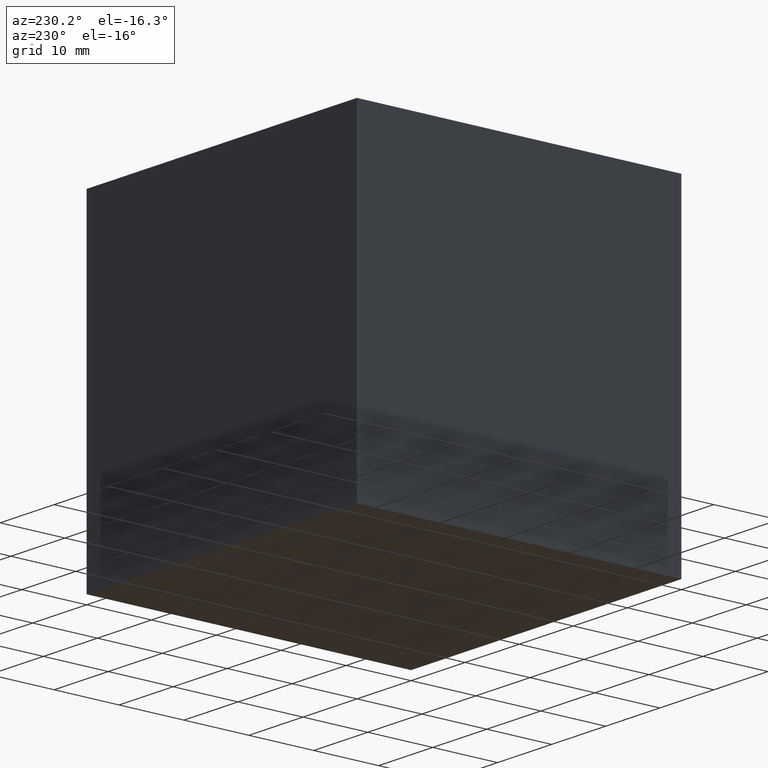
[diagram: clean part render]
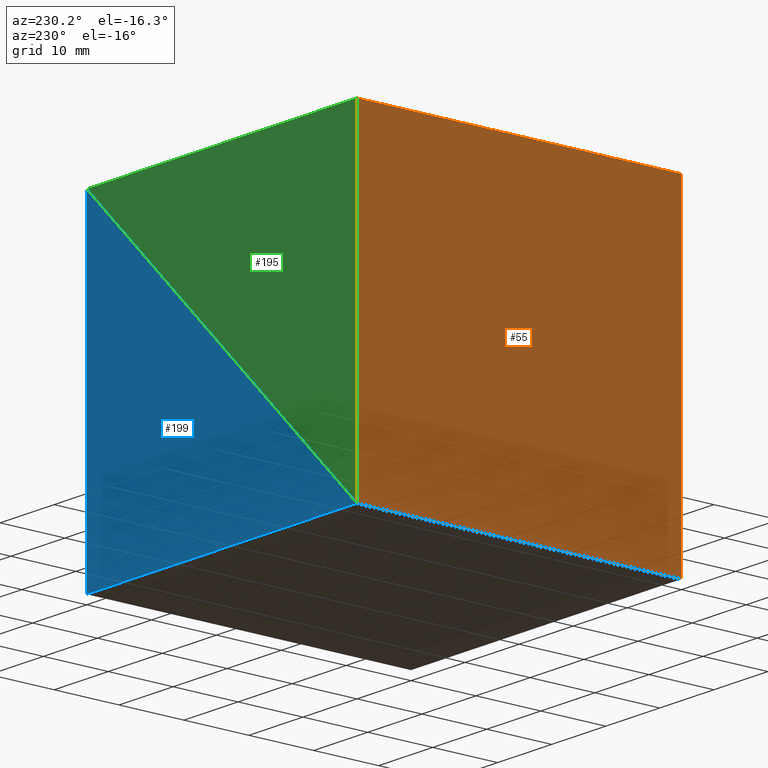
[diagram: same view with three faces highlighted in distinct colors, each labeled with its STEP entity id]
A machine part, auxiliary view with three faces highlighted in distinct colors.
Their STEP definitions:

[orange] entity #55 — the highlighted planar face has unit normal (-1, 0, 0).
#5 = ORIENTED_EDGE ( 'NONE', *, *, #108, .T. ) ;
#9 = DIRECTION ( 'NONE',  ( -0.0000000000000000000, -0.0000000000000000000, -1.000000000000000000 ) ) ;
#24 = LINE ( 'NONE', #30, #215 ) ;
#29 = LINE ( 'NONE', #101, #67 ) ;
#30 = CARTESIAN_POINT ( 'NONE',  ( -50.00000000000000000, 50.00000000000000000, -49.99999999999999300 ) ) ;
#34 = CARTESIAN_POINT ( 'NONE',  ( -50.00000000000000000, 0.0000000000000000000, 0.0000000000000000000 ) ) ;
#35 = LINE ( 'NONE', #255, #126 ) ;
#42 = ORIENTED_EDGE ( 'NONE', *, *, #218, .F. ) ;
#48 = DIRECTION ( 'NONE',  ( -0.0000000000000000000, -0.0000000000000000000, -1.000000000000000000 ) ) ;
#52 = AXIS2_PLACEMENT_3D ( 'NONE', #124, #73, #219 ) ;
#55 = ADVANCED_FACE ( 'NONE', ( #189 ), #301, .T. ) ;
#66 = VERTEX_POINT ( 'NONE', #34 ) ;
#67 = VECTOR ( 'NONE', #68, 1000.000000000000000 ) ;
#68 = DIRECTION ( 'NONE',  ( 0.0000000000000000000, -1.000000000000000000, 0.0000000000000000000 ) ) ;
#73 = DIRECTION ( 'NONE',  ( -1.000000000000000000, 0.0000000000000000000, 0.0000000000000000000 ) ) ;
#98 = EDGE_CURVE ( 'NONE', #221, #175, #29, .T. ) ;
#101 = CARTESIAN_POINT ( 'NONE',  ( -50.00000000000000000, 50.00000000000000000, -49.99999999999999300 ) ) ;
#102 = LINE ( 'NONE', #106, #295 ) ;
#106 = CARTESIAN_POINT ( 'NONE',  ( -50.00000000000000000, 50.00000000000000000, 0.0000000000000000000 ) ) ;
#108 = EDGE_CURVE ( 'NONE', #243, #221, #24, .T. ) ;
#124 = CARTESIAN_POINT ( 'NONE',  ( -50.00000000000000000, 50.00000000000000000, -49.99999999999999300 ) ) ;
#126 = VECTOR ( 'NONE', #48, 1000.000000000000000 ) ;
#133 = EDGE_CURVE ( 'NONE', #243, #66, #102, .T. ) ;
#141 = CARTESIAN_POINT ( 'NONE',  ( -50.00000000000000000, 50.00000000000000000, -49.99999999999999300 ) ) ;
#175 = VERTEX_POINT ( 'NONE', #182 ) ;
#182 = CARTESIAN_POINT ( 'NONE',  ( -50.00000000000000000, -0.0000000000000000000, -49.99999999999999300 ) ) ;
#189 = FACE_OUTER_BOUND ( 'NONE', #190, .T. ) ;
#190 = EDGE_LOOP ( 'NONE', ( #42, #283, #5, #245 ) ) ;
#215 = VECTOR ( 'NONE', #9, 1000.000000000000000 ) ;
#218 = EDGE_CURVE ( 'NONE', #66, #175, #35, .T. ) ;
#219 = DIRECTION ( 'NONE',  ( 0.0000000000000000000, 0.0000000000000000000, 1.000000000000000000 ) ) ;
#221 = VERTEX_POINT ( 'NONE', #141 ) ;
#234 = DIRECTION ( 'NONE',  ( 0.0000000000000000000, -1.000000000000000000, 0.0000000000000000000 ) ) ;
#243 = VERTEX_POINT ( 'NONE', #286 ) ;
#245 = ORIENTED_EDGE ( 'NONE', *, *, #98, .T. ) ;
#255 = CARTESIAN_POINT ( 'NONE',  ( -50.00000000000000000, -0.0000000000000000000, -49.99999999999999300 ) ) ;
#283 = ORIENTED_EDGE ( 'NONE', *, *, #133, .F. ) ;
#286 = CARTESIAN_POINT ( 'NONE',  ( -50.00000000000000000, 50.00000000000000000, 0.0000000000000000000 ) ) ;
#295 = VECTOR ( 'NONE', #234, 1000.000000000000000 ) ;
#301 = PLANE ( 'NONE',  #52 ) ;

[blue] entity #199 — the highlighted planar face has unit normal (-0, 1, 0).
#13 = CARTESIAN_POINT ( 'NONE',  ( 0.0000000000000000000, 50.00000000000000000, -50.00000000000000000 ) ) ;
#32 = PLANE ( 'NONE',  #107 ) ;
#33 = EDGE_CURVE ( 'NONE', #232, #256, #129, .T. ) ;
#41 = ORIENTED_EDGE ( 'NONE', *, *, #290, .T. ) ;
#49 = DIRECTION ( 'NONE',  ( -0.0000000000000000000, 1.000000000000000000, 0.0000000000000000000 ) ) ;
#51 = CARTESIAN_POINT ( 'NONE',  ( 0.0000000000000000000, 50.00000000000000000, -50.00000000000000000 ) ) ;
#70 = DIRECTION ( 'NONE',  ( 0.0000000000000000000, -0.0000000000000000000, 1.000000000000000000 ) ) ;
#77 = DIRECTION ( 'NONE',  ( 0.7071067811865475700, 0.0000000000000000000, 0.7071067811865474600 ) ) ;
#87 = ORIENTED_EDGE ( 'NONE', *, *, #94, .T. ) ;
#91 = DIRECTION ( 'NONE',  ( 0.0000000000000000000, 0.0000000000000000000, -1.000000000000000000 ) ) ;
#94 = EDGE_CURVE ( 'NONE', #256, #252, #285, .T. ) ;
#100 = CARTESIAN_POINT ( 'NONE',  ( 0.0000000000000000000, 50.00000000000000000, 0.0000000000000000000 ) ) ;
#107 = AXIS2_PLACEMENT_3D ( 'NONE', #287, #49, #70 ) ;
#122 = EDGE_LOOP ( 'NONE', ( #193, #87, #41 ) ) ;
#129 = LINE ( 'NONE', #202, #258 ) ;
#156 = FACE_OUTER_BOUND ( 'NONE', #122, .T. ) ;
#159 = VECTOR ( 'NONE', #91, 1000.000000000000000 ) ;
#167 = CARTESIAN_POINT ( 'NONE',  ( -50.00000000000000000, 50.00000000000000000, -49.99999999999999300 ) ) ;
#193 = ORIENTED_EDGE ( 'NONE', *, *, #33, .T. ) ;
#199 = ADVANCED_FACE ( 'NONE', ( #156 ), #32, .T. ) ;
#202 = CARTESIAN_POINT ( 'NONE',  ( -50.00000000000000000, 50.00000000000000000, -49.99999999999999300 ) ) ;
#232 = VERTEX_POINT ( 'NONE', #167 ) ;
#240 = CARTESIAN_POINT ( 'NONE',  ( 0.0000000000000000000, 50.00000000000000000, 0.0000000000000000000 ) ) ;
#242 = VECTOR ( 'NONE', #278, 1000.000000000000000 ) ;
#246 = LINE ( 'NONE', #51, #242 ) ;
#252 = VERTEX_POINT ( 'NONE', #13 ) ;
#256 = VERTEX_POINT ( 'NONE', #100 ) ;
#258 = VECTOR ( 'NONE', #77, 1000.000000000000000 ) ;
#278 = DIRECTION ( 'NONE',  ( -1.000000000000000000, 0.0000000000000000000, 1.387778780781445700E-016 ) ) ;
#285 = LINE ( 'NONE', #240, #159 ) ;
#287 = CARTESIAN_POINT ( 'NONE',  ( 0.0000000000000000000, 50.00000000000000000, 0.0000000000000000000 ) ) ;
#290 = EDGE_CURVE ( 'NONE', #252, #232, #246, .T. ) ;

[green] entity #195 — the highlighted planar face has unit normal (0, 1, 0).
#8 = LINE ( 'NONE', #88, #241 ) ;
#9 = DIRECTION ( 'NONE',  ( -0.0000000000000000000, -0.0000000000000000000, -1.000000000000000000 ) ) ;
#14 = DIRECTION ( 'NONE',  ( 0.7071067811865475700, 0.0000000000000000000, 0.7071067811865474600 ) ) ;
#24 = LINE ( 'NONE', #30, #215 ) ;
#30 = CARTESIAN_POINT ( 'NONE',  ( -50.00000000000000000, 50.00000000000000000, -49.99999999999999300 ) ) ;
#39 = LINE ( 'NONE', #166, #180 ) ;
#50 = FACE_OUTER_BOUND ( 'NONE', #251, .T. ) ;
#79 = AXIS2_PLACEMENT_3D ( 'NONE', #280, #231, #111 ) ;
#88 = CARTESIAN_POINT ( 'NONE',  ( 0.0000000000000000000, 50.00000000000000000, 0.0000000000000000000 ) ) ;
#104 = ORIENTED_EDGE ( 'NONE', *, *, #112, .F. ) ;
#108 = EDGE_CURVE ( 'NONE', #243, #221, #24, .T. ) ;
#111 = DIRECTION ( 'NONE',  ( 0.0000000000000000000, -0.0000000000000000000, 1.000000000000000000 ) ) ;
#112 = EDGE_CURVE ( 'NONE', #172, #243, #39, .T. ) ;
#140 = DIRECTION ( 'NONE',  ( -1.000000000000000000, -0.0000000000000000000, -0.0000000000000000000 ) ) ;
#141 = CARTESIAN_POINT ( 'NONE',  ( -50.00000000000000000, 50.00000000000000000, -49.99999999999999300 ) ) ;
#144 = PLANE ( 'NONE',  #79 ) ;
#153 = ORIENTED_EDGE ( 'NONE', *, *, #108, .F. ) ;
#166 = CARTESIAN_POINT ( 'NONE',  ( -50.00000000000000000, 50.00000000000000000, 0.0000000000000000000 ) ) ;
#172 = VERTEX_POINT ( 'NONE', #250 ) ;
#180 = VECTOR ( 'NONE', #140, 1000.000000000000000 ) ;
#184 = EDGE_CURVE ( 'NONE', #221, #172, #8, .T. ) ;
#195 = ADVANCED_FACE ( 'NONE', ( #50 ), #144, .T. ) ;
#215 = VECTOR ( 'NONE', #9, 1000.000000000000000 ) ;
#217 = ORIENTED_EDGE ( 'NONE', *, *, #184, .F. ) ;
#221 = VERTEX_POINT ( 'NONE', #141 ) ;
#231 = DIRECTION ( 'NONE',  ( 0.0000000000000000000, 1.000000000000000000, 0.0000000000000000000 ) ) ;
#241 = VECTOR ( 'NONE', #14, 1000.000000000000000 ) ;
#243 = VERTEX_POINT ( 'NONE', #286 ) ;
#250 = CARTESIAN_POINT ( 'NONE',  ( 0.0000000000000000000, 50.00000000000000000, 0.0000000000000000000 ) ) ;
#251 = EDGE_LOOP ( 'NONE', ( #217, #153, #104 ) ) ;
#280 = CARTESIAN_POINT ( 'NONE',  ( 0.0000000000000000000, 50.00000000000000000, 0.0000000000000000000 ) ) ;
#286 = CARTESIAN_POINT ( 'NONE',  ( -50.00000000000000000, 50.00000000000000000, 0.0000000000000000000 ) ) ;